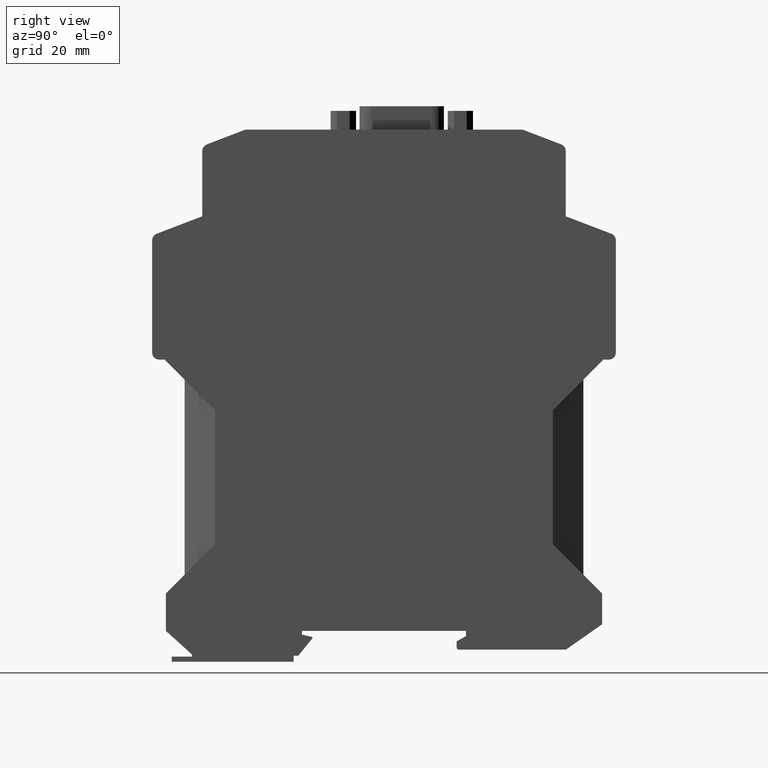
[diagram: clean part render]
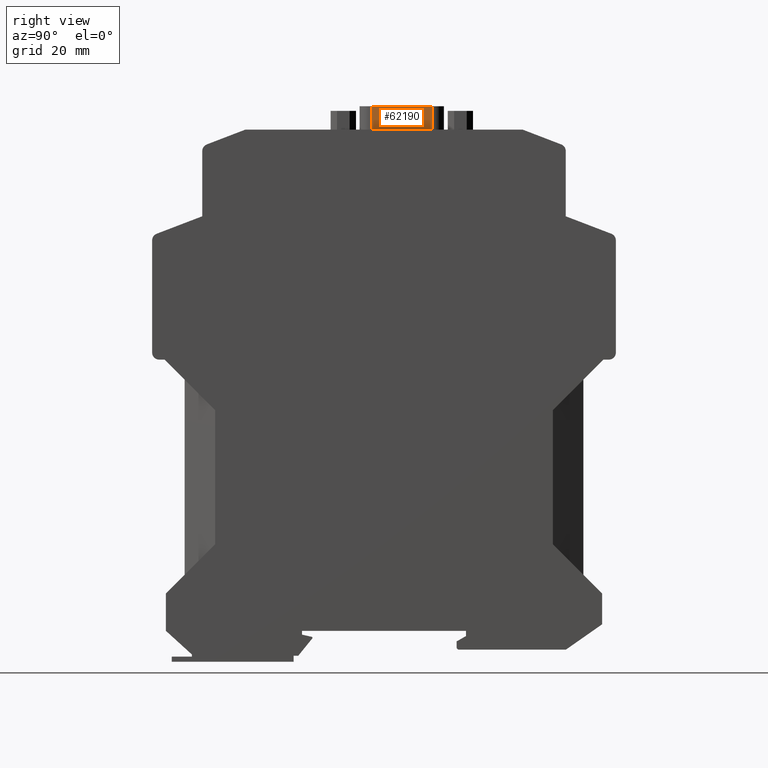
[diagram: same view with one face highlighted and labeled with its STEP entity id]
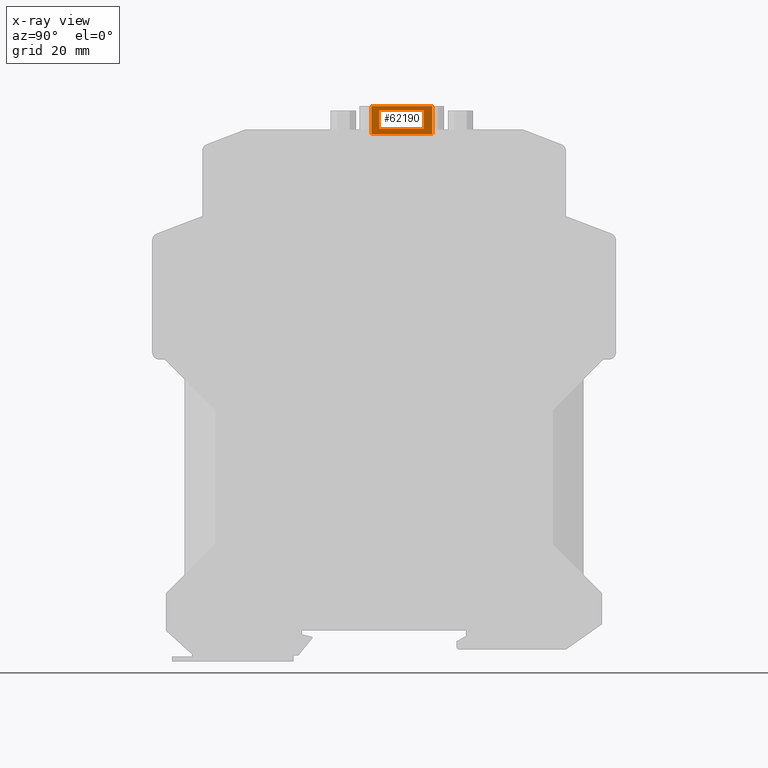
[diagram: x-ray of the same camera — body ghosted, the highlighted face saturated]
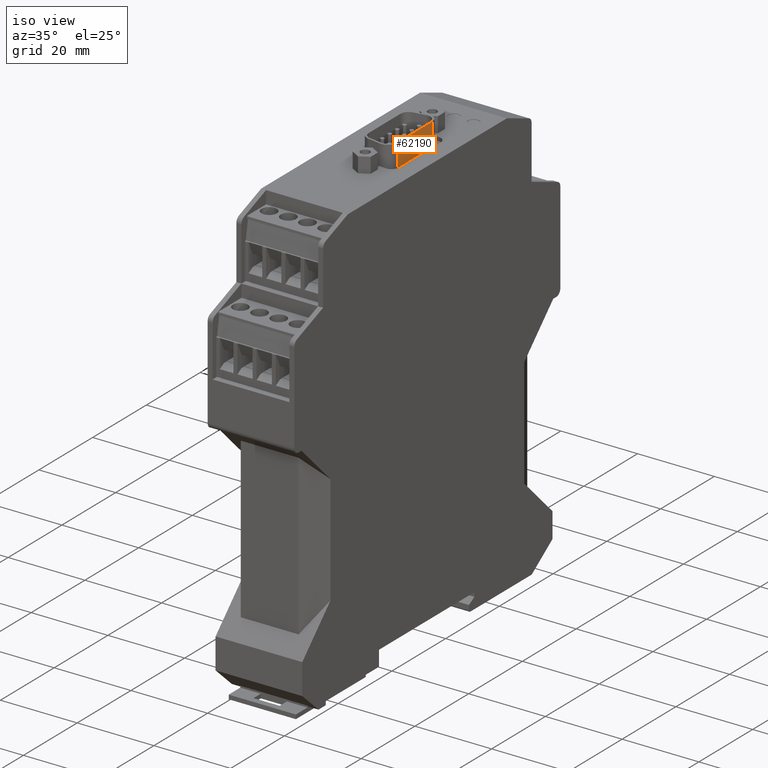
[diagram: same view with one face highlighted and labeled with its STEP entity id]
A machine part, right view. The second image highlights one B-rep face of the part: STEP entity #62190.
The next image is the same camera in x-ray: the body ghosted, the highlighted face saturated — about 0% of this face is hidden behind the body in this view.
A second angle (iso view) of the same face is appended — the face is thin or edge-on in the first view.
In plain terms, the highlighted planar face has unit normal (1, 0, 0).
Its self-contained STEP definition (entity closure, byte-faithful):
#58980=CARTESIAN_POINT('',(-2.69000001120715,105.993019017859,
16.6586513822));
#58990=VERTEX_POINT('',#58980);
#59020=CARTESIAN_POINT('',(-59.0705715650678,105.993019017859,
16.6586513568));
#59030=DIRECTION('',(1.,-1.66533453693774E-16,-3.08324751326383E-16));
#59040=VECTOR('',#59030,1.);
#59050=LINE('',#59020,#59040);
#59060=CARTESIAN_POINT('',(10.3099999983929,105.993019017859,
16.6586513568));
#59070=VERTEX_POINT('',#59060);
#59080=EDGE_CURVE('',#58990,#59070,#59050,.T.);
#61890=CARTESIAN_POINT('',(10.6494899986329,112.164664524614,
16.6586513568));
#61900=DIRECTION('',(3.08324751326383E-16,2.08166817117217E-17,1.));
#61910=DIRECTION('',(-1.,1.66533453693774E-16,3.08324751326383E-16));
#61920=AXIS2_PLACEMENT_3D('',#61890,#61900,#61910);
#61930=PLANE('',#61920);
#61940=CARTESIAN_POINT('',(-2.69000001120715,105.993019017859,
16.6586513822));
#61950=DIRECTION('',(1.66533453693774E-16,1.,-2.08166817117217E-17));
#61960=VECTOR('',#61950,1.);
#61970=LINE('',#61940,#61960);
#61980=CARTESIAN_POINT('',(-2.69000001120715,112.000000000059,
16.6586513822));
#61990=VERTEX_POINT('',#61980);
#62000=EDGE_CURVE('',#58990,#61990,#61970,.T.);
#62010=ORIENTED_EDGE('',*,*,#62000,.F.);
#62020=CARTESIAN_POINT('',(-59.0705715650678,112.000000000059,
16.6586513568));
#62030=DIRECTION('',(1.,-1.66533453693774E-16,-3.08324751326383E-16));
#62040=VECTOR('',#62030,1.);
#62050=LINE('',#62020,#62040);
#62060=CARTESIAN_POINT('',(10.3099999983929,112.000000000059,
16.6586513568));
#62070=VERTEX_POINT('',#62060);
#62080=EDGE_CURVE('',#61990,#62070,#62050,.T.);
#62090=ORIENTED_EDGE('',*,*,#62080,.F.);
#62100=CARTESIAN_POINT('',(10.3099999983929,105.993019017859,
16.6586513568));
#62110=DIRECTION('',(1.66533453693774E-16,1.,-2.08166817117217E-17));
#62120=VECTOR('',#62110,1.);
#62130=LINE('',#62100,#62120);
#62140=EDGE_CURVE('',#59070,#62070,#62130,.T.);
#62150=ORIENTED_EDGE('',*,*,#62140,.T.);
#62160=ORIENTED_EDGE('',*,*,#59080,.T.);
#62170=EDGE_LOOP('',(#62160,#62150,#62090,#62010));
#62180=FACE_OUTER_BOUND('',#62170,.T.);
#62190=ADVANCED_FACE('',(#62180),#61930,.T.);